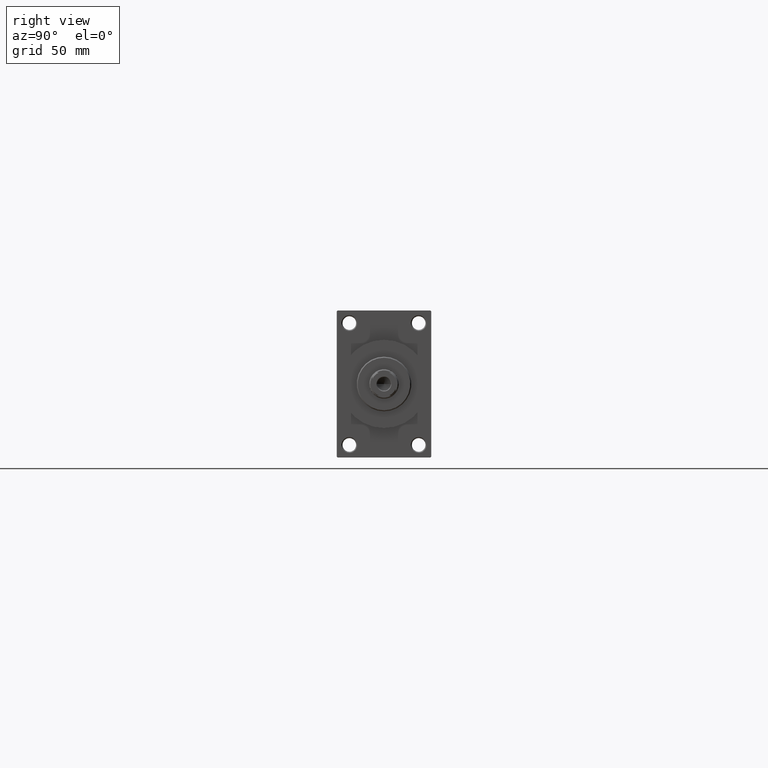
[diagram: clean part render]
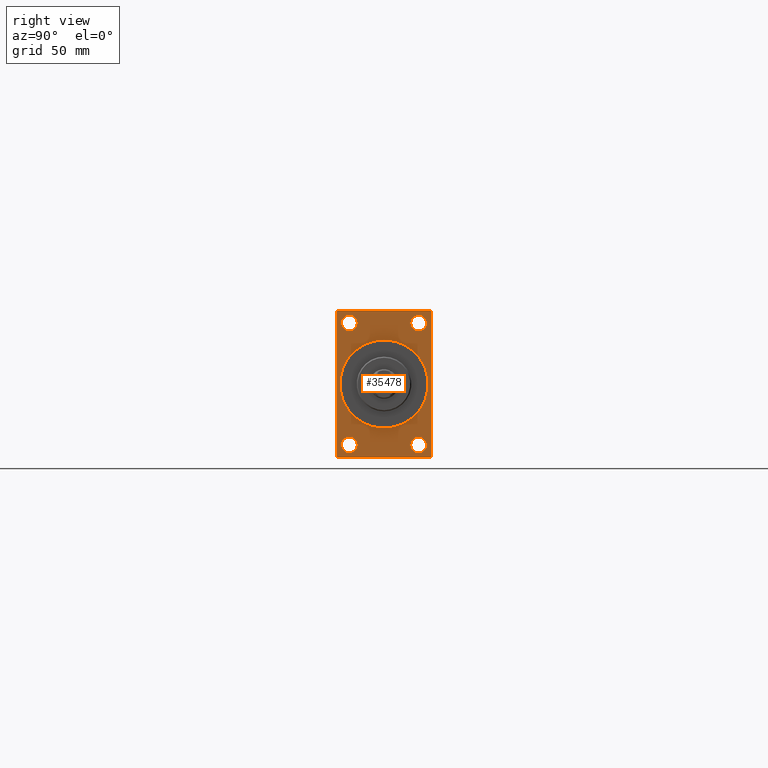
[diagram: same view with one face highlighted and labeled with its STEP entity id]
A machine part, right view. The second image highlights one B-rep face of the part: STEP entity #35478.
In plain terms, the highlighted planar face has unit normal (-1, 0, 0).
Its self-contained STEP definition (entity closure, byte-faithful):
#66 = DIRECTION ( 'NONE',  ( 1.000000000000000000, 0.000000000000000000, 0.000000000000000000 ) ) ;
#686 = CARTESIAN_POINT ( 'NONE',  ( 293.0000000000000000, 0.000000000000000000, 21.00000000000000000 ) ) ;
#981 = CIRCLE ( 'NONE', #24608, 3.750000000000055511 ) ;
#1108 = CARTESIAN_POINT ( 'NONE',  ( 293.0000000000000000, -16.50000000000000000, -28.99999999999999289 ) ) ;
#1141 = CIRCLE ( 'NONE', #36221, 3.750000000000055511 ) ;
#1433 = VECTOR ( 'NONE', #25426, 1000.000000000000000 ) ;
#1830 = ORIENTED_EDGE ( 'NONE', *, *, #3742, .T. ) ;
#2008 = ORIENTED_EDGE ( 'NONE', *, *, #37743, .T. ) ;
#2407 = DIRECTION ( 'NONE',  ( 0.000000000000000000, 0.000000000000000000, -1.000000000000000000 ) ) ;
#2640 = CARTESIAN_POINT ( 'NONE',  ( 293.0000000000000000, -22.50000000000000355, 35.00000000000000000 ) ) ;
#2726 = CIRCLE ( 'NONE', #46118, 21.00000000000000000 ) ;
#2866 = LINE ( 'NONE', #21233, #24054 ) ;
#2905 = ORIENTED_EDGE ( 'NONE', *, *, #37650, .T. ) ;
#3451 = DIRECTION ( 'NONE',  ( -1.000000000000000000, -0.000000000000000000, -0.000000000000000000 ) ) ;
#3452 = DIRECTION ( 'NONE',  ( -0.000000000000000000, 0.000000000000000000, 1.000000000000000000 ) ) ;
#3627 = ORIENTED_EDGE ( 'NONE', *, *, #22489, .T. ) ;
#3742 = EDGE_CURVE ( 'NONE', #9408, #20194, #4763, .T. ) ;
#3984 = VERTEX_POINT ( 'NONE', #26941 ) ;
#4178 = EDGE_CURVE ( 'NONE', #47054, #17003, #981, .T. ) ;
#4219 = DIRECTION ( 'NONE',  ( -0.000000000000000000, 0.7071067811865672237, 0.7071067811865279218 ) ) ;
#4633 = LINE ( 'NONE', #19193, #1433 ) ;
#4763 = CIRCLE ( 'NONE', #36759, 3.750000000000058620 ) ;
#5177 = ORIENTED_EDGE ( 'NONE', *, *, #8564, .T. ) ;
#5312 = VECTOR ( 'NONE', #27111, 1000.000000000000000 ) ;
#6052 = VERTEX_POINT ( 'NONE', #21737 ) ;
#6317 = FACE_BOUND ( 'NONE', #41993, .T. ) ;
#6919 = EDGE_CURVE ( 'NONE', #3984, #6052, #39696, .T. ) ;
#7256 = DIRECTION ( 'NONE',  ( -1.000000000000000000, 0.000000000000000000, -0.000000000000000000 ) ) ;
#7438 = CARTESIAN_POINT ( 'NONE',  ( 293.0000000000000000, 0.000000000000000000, 0.000000000000000000 ) ) ;
#7960 = EDGE_CURVE ( 'NONE', #45262, #15080, #20914, .T. ) ;
#8202 = CARTESIAN_POINT ( 'NONE',  ( 293.0000000000000000, 22.49999999999999645, 35.00000000000000000 ) ) ;
#8277 = AXIS2_PLACEMENT_3D ( 'NONE', #23929, #46295, #20102 ) ;
#8309 = VERTEX_POINT ( 'NONE', #44797 ) ;
#8481 = DIRECTION ( 'NONE',  ( 0.000000000000000000, 0.000000000000000000, 1.000000000000000000 ) ) ;
#8486 = DIRECTION ( 'NONE',  ( -1.000000000000000000, -0.000000000000000000, -0.000000000000000000 ) ) ;
#8564 = EDGE_CURVE ( 'NONE', #18296, #21203, #46799, .T. ) ;
#9381 = VERTEX_POINT ( 'NONE', #38474 ) ;
#9407 = CARTESIAN_POINT ( 'NONE',  ( 293.0000000000000000, -16.50000000000000000, -28.99999999999999289 ) ) ;
#9408 = VERTEX_POINT ( 'NONE', #24181 ) ;
#9431 = FACE_BOUND ( 'NONE', #27696, .T. ) ;
#9910 = ORIENTED_EDGE ( 'NONE', *, *, #7960, .F. ) ;
#10307 = ORIENTED_EDGE ( 'NONE', *, *, #20438, .T. ) ;
#10561 = EDGE_CURVE ( 'NONE', #15080, #45262, #2726, .T. ) ;
#10608 = DIRECTION ( 'NONE',  ( 0.000000000000000000, 0.7071067811865279218, -0.7071067811865671127 ) ) ;
#11079 = ORIENTED_EDGE ( 'NONE', *, *, #10561, .F. ) ;
#12264 = DIRECTION ( 'NONE',  ( 0.000000000000000000, -1.000000000000000000, 0.000000000000000000 ) ) ;
#13525 = EDGE_CURVE ( 'NONE', #14044, #9381, #1141, .T. ) ;
#13983 = EDGE_CURVE ( 'NONE', #45068, #45754, #2866, .T. ) ;
#14044 = VERTEX_POINT ( 'NONE', #17335 ) ;
#14191 = FACE_BOUND ( 'NONE', #40136, .T. ) ;
#14848 = CARTESIAN_POINT ( 'NONE',  ( 293.0000000000000000, 16.50000000000000000, 29.00000000000000355 ) ) ;
#15080 = VERTEX_POINT ( 'NONE', #19146 ) ;
#16323 = ORIENTED_EDGE ( 'NONE', *, *, #13525, .T. ) ;
#16615 = CIRCLE ( 'NONE', #43243, 3.750000000000055511 ) ;
#17003 = VERTEX_POINT ( 'NONE', #33863 ) ;
#17052 = EDGE_LOOP ( 'NONE', ( #16323, #10307 ) ) ;
#17066 = FACE_BOUND ( 'NONE', #17052, .T. ) ;
#17087 = EDGE_LOOP ( 'NONE', ( #9910, #11079 ) ) ;
#17335 = CARTESIAN_POINT ( 'NONE',  ( 293.0000000000000000, -16.50000000000000000, 25.24999999999995381 ) ) ;
#17418 = DIRECTION ( 'NONE',  ( -0.000000000000000000, -0.7071067811865672237, -0.7071067811865279218 ) ) ;
#17665 = DIRECTION ( 'NONE',  ( 0.000000000000000000, 0.000000000000000000, -1.000000000000000000 ) ) ;
#18000 = DIRECTION ( 'NONE',  ( 0.000000000000000000, 0.000000000000000000, 1.000000000000000000 ) ) ;
#18003 = CARTESIAN_POINT ( 'NONE',  ( 293.0000000000000000, 22.49999999999999645, 35.00000000000000000 ) ) ;
#18296 = VERTEX_POINT ( 'NONE', #35927 ) ;
#18417 = AXIS2_PLACEMENT_3D ( 'NONE', #9407, #34450, #31348 ) ;
#18781 = DIRECTION ( 'NONE',  ( 0.000000000000000000, 0.000000000000000000, 1.000000000000000000 ) ) ;
#19146 = CARTESIAN_POINT ( 'NONE',  ( 293.0000000000000000, 2.571758278209441661E-15, -21.00000000000000000 ) ) ;
#19193 = CARTESIAN_POINT ( 'NONE',  ( 293.0000000000000000, 22.49999999999999645, -35.00000000000000000 ) ) ;
#19877 = EDGE_CURVE ( 'NONE', #45754, #8309, #32211, .T. ) ;
#20102 = DIRECTION ( 'NONE',  ( 0.000000000000000000, 0.000000000000000000, 1.000000000000000000 ) ) ;
#20194 = VERTEX_POINT ( 'NONE', #26685 ) ;
#20294 = CARTESIAN_POINT ( 'NONE',  ( 293.0000000000000000, -21.99999999999996092, 35.00000000000000000 ) ) ;
#20438 = EDGE_CURVE ( 'NONE', #9381, #14044, #16615, .T. ) ;
#20882 = FACE_BOUND ( 'NONE', #17087, .T. ) ;
#20914 = CIRCLE ( 'NONE', #42248, 21.00000000000000000 ) ;
#21203 = VERTEX_POINT ( 'NONE', #25474 ) ;
#21233 = CARTESIAN_POINT ( 'NONE',  ( 293.0000000000000000, -22.50000000000000355, 34.50000000000000000 ) ) ;
#21591 = DIRECTION ( 'NONE',  ( 0.000000000000000000, 0.000000000000000000, -1.000000000000000000 ) ) ;
#21737 = CARTESIAN_POINT ( 'NONE',  ( 293.0000000000000000, 22.49999999999999645, -34.50000000000000000 ) ) ;
#22119 = DIRECTION ( 'NONE',  ( -1.000000000000000000, -0.000000000000000000, -0.000000000000000000 ) ) ;
#22489 = EDGE_CURVE ( 'NONE', #17003, #47054, #25832, .T. ) ;
#22880 = ORIENTED_EDGE ( 'NONE', *, *, #46609, .T. ) ;
#22888 = AXIS2_PLACEMENT_3D ( 'NONE', #43798, #22119, #28802 ) ;
#23066 = DIRECTION ( 'NONE',  ( 0.000000000000000000, 0.000000000000000000, 1.000000000000000000 ) ) ;
#23071 = CARTESIAN_POINT ( 'NONE',  ( 293.0000000000000000, 22.00000000000002132, 35.00000000000000000 ) ) ;
#23409 = ORIENTED_EDGE ( 'NONE', *, *, #28693, .T. ) ;
#23929 = CARTESIAN_POINT ( 'NONE',  ( 293.0000000000000000, 16.50000000000000000, -28.99999999999999289 ) ) ;
#24054 = VECTOR ( 'NONE', #17418, 1000.000000000000000 ) ;
#24074 = CARTESIAN_POINT ( 'NONE',  ( 293.0000000000000000, 16.50000000000000000, -25.24999999999993605 ) ) ;
#24181 = CARTESIAN_POINT ( 'NONE',  ( 293.0000000000000000, 16.50000000000000000, 25.24999999999994671 ) ) ;
#24372 = DIRECTION ( 'NONE',  ( 1.000000000000000000, 0.000000000000000000, 0.000000000000000000 ) ) ;
#24375 = AXIS2_PLACEMENT_3D ( 'NONE', #29659, #7256, #3452 ) ;
#24608 = AXIS2_PLACEMENT_3D ( 'NONE', #29282, #43810, #18781 ) ;
#24783 = ORIENTED_EDGE ( 'NONE', *, *, #19877, .T. ) ;
#25144 = CARTESIAN_POINT ( 'NONE',  ( 293.0000000000000000, 21.99999999999996803, -35.00000000000000000 ) ) ;
#25180 = CIRCLE ( 'NONE', #22888, 3.750000000000058620 ) ;
#25426 = DIRECTION ( 'NONE',  ( 0.000000000000000000, -1.000000000000000000, 0.000000000000000000 ) ) ;
#25474 = CARTESIAN_POINT ( 'NONE',  ( 293.0000000000000000, -16.50000000000000000, -32.75000000000005684 ) ) ;
#25821 = DIRECTION ( 'NONE',  ( 0.000000000000000000, 0.000000000000000000, 1.000000000000000000 ) ) ;
#25832 = CIRCLE ( 'NONE', #8277, 3.750000000000055511 ) ;
#26628 = CARTESIAN_POINT ( 'NONE',  ( 293.0000000000000000, 22.49999999999999645, -34.50000000000000000 ) ) ;
#26685 = CARTESIAN_POINT ( 'NONE',  ( 293.0000000000000000, 16.50000000000000000, 32.75000000000006395 ) ) ;
#26784 = CIRCLE ( 'NONE', #18417, 3.750000000000055511 ) ;
#26941 = CARTESIAN_POINT ( 'NONE',  ( 293.0000000000000000, 22.49999999999999645, 34.50000000000000000 ) ) ;
#27111 = DIRECTION ( 'NONE',  ( 0.000000000000000000, -0.7071067811865279218, 0.7071067811865671127 ) ) ;
#27281 = ORIENTED_EDGE ( 'NONE', *, *, #4178, .T. ) ;
#27393 = CARTESIAN_POINT ( 'NONE',  ( 293.0000000000000000, -22.00000000000001776, -35.00000000000000000 ) ) ;
#27454 = VECTOR ( 'NONE', #4219, 1000.000000000000000 ) ;
#27696 = EDGE_LOOP ( 'NONE', ( #42610, #5177 ) ) ;
#28492 = VECTOR ( 'NONE', #21591, 1000.000000000000000 ) ;
#28693 = EDGE_CURVE ( 'NONE', #3984, #33270, #31162, .T. ) ;
#28802 = DIRECTION ( 'NONE',  ( 0.000000000000000000, 0.000000000000000000, 1.000000000000000000 ) ) ;
#29002 = VECTOR ( 'NONE', #12264, 1000.000000000000000 ) ;
#29282 = CARTESIAN_POINT ( 'NONE',  ( 293.0000000000000000, 16.50000000000000000, -28.99999999999999289 ) ) ;
#29390 = DIRECTION ( 'NONE',  ( -1.000000000000000000, -0.000000000000000000, -0.000000000000000000 ) ) ;
#29479 = EDGE_CURVE ( 'NONE', #39008, #44728, #4633, .T. ) ;
#29499 = VECTOR ( 'NONE', #2407, 1000.000000000000000 ) ;
#29659 = CARTESIAN_POINT ( 'NONE',  ( 293.0000000000000000, 0.000000000000000000, 0.000000000000000000 ) ) ;
#31162 = LINE ( 'NONE', #23071, #5312 ) ;
#31348 = DIRECTION ( 'NONE',  ( 0.000000000000000000, 0.000000000000000000, 1.000000000000000000 ) ) ;
#31811 = ORIENTED_EDGE ( 'NONE', *, *, #29479, .F. ) ;
#32211 = LINE ( 'NONE', #2640, #29499 ) ;
#33270 = VERTEX_POINT ( 'NONE', #38363 ) ;
#33541 = DIRECTION ( 'NONE',  ( -1.000000000000000000, -0.000000000000000000, -0.000000000000000000 ) ) ;
#33863 = CARTESIAN_POINT ( 'NONE',  ( 293.0000000000000000, 16.50000000000000000, -32.75000000000005684 ) ) ;
#33965 = LINE ( 'NONE', #8202, #29002 ) ;
#34450 = DIRECTION ( 'NONE',  ( -1.000000000000000000, -0.000000000000000000, -0.000000000000000000 ) ) ;
#35379 = AXIS2_PLACEMENT_3D ( 'NONE', #1108, #8486, #23066 ) ;
#35478 = ADVANCED_FACE ( 'NONE', ( #17066, #9431, #14191, #6317, #20882, #38526 ), #44189, .F. ) ;
#35790 = CARTESIAN_POINT ( 'NONE',  ( 293.0000000000000000, 0.000000000000000000, 0.000000000000000000 ) ) ;
#35927 = CARTESIAN_POINT ( 'NONE',  ( 293.0000000000000000, -16.50000000000000000, -25.24999999999993605 ) ) ;
#36122 = CARTESIAN_POINT ( 'NONE',  ( 293.0000000000000000, -16.50000000000000000, 29.00000000000000711 ) ) ;
#36221 = AXIS2_PLACEMENT_3D ( 'NONE', #36122, #3451, #18000 ) ;
#36759 = AXIS2_PLACEMENT_3D ( 'NONE', #14848, #29390, #25821 ) ;
#36889 = LINE ( 'NONE', #26628, #27454 ) ;
#37494 = VECTOR ( 'NONE', #10608, 1000.000000000000000 ) ;
#37650 = EDGE_CURVE ( 'NONE', #20194, #9408, #25180, .T. ) ;
#37743 = EDGE_CURVE ( 'NONE', #39008, #6052, #36889, .T. ) ;
#37926 = ORIENTED_EDGE ( 'NONE', *, *, #38740, .T. ) ;
#38095 = ORIENTED_EDGE ( 'NONE', *, *, #13983, .T. ) ;
#38305 = CARTESIAN_POINT ( 'NONE',  ( 293.0000000000000000, -16.50000000000000000, 29.00000000000000711 ) ) ;
#38363 = CARTESIAN_POINT ( 'NONE',  ( 293.0000000000000000, 22.00000000000002132, 35.00000000000000000 ) ) ;
#38474 = CARTESIAN_POINT ( 'NONE',  ( 293.0000000000000000, -16.50000000000000000, 32.75000000000006395 ) ) ;
#38526 = FACE_OUTER_BOUND ( 'NONE', #45805, .T. ) ;
#38740 = EDGE_CURVE ( 'NONE', #33270, #45068, #33965, .T. ) ;
#39008 = VERTEX_POINT ( 'NONE', #25144 ) ;
#39468 = LINE ( 'NONE', #40391, #37494 ) ;
#39696 = LINE ( 'NONE', #18003, #28492 ) ;
#40136 = EDGE_LOOP ( 'NONE', ( #3627, #27281 ) ) ;
#40391 = CARTESIAN_POINT ( 'NONE',  ( 293.0000000000000000, -22.00000000000002842, -35.00000000000000000 ) ) ;
#40746 = ORIENTED_EDGE ( 'NONE', *, *, #6919, .F. ) ;
#40970 = EDGE_CURVE ( 'NONE', #21203, #18296, #26784, .T. ) ;
#41993 = EDGE_LOOP ( 'NONE', ( #1830, #2905 ) ) ;
#42248 = AXIS2_PLACEMENT_3D ( 'NONE', #7438, #66, #43682 ) ;
#42610 = ORIENTED_EDGE ( 'NONE', *, *, #40970, .T. ) ;
#43243 = AXIS2_PLACEMENT_3D ( 'NONE', #38305, #33541, #8481 ) ;
#43682 = DIRECTION ( 'NONE',  ( 0.000000000000000000, 0.000000000000000000, -1.000000000000000000 ) ) ;
#43798 = CARTESIAN_POINT ( 'NONE',  ( 293.0000000000000000, 16.50000000000000000, 29.00000000000000355 ) ) ;
#43810 = DIRECTION ( 'NONE',  ( -1.000000000000000000, -0.000000000000000000, -0.000000000000000000 ) ) ;
#44189 = PLANE ( 'NONE',  #24375 ) ;
#44728 = VERTEX_POINT ( 'NONE', #27393 ) ;
#44797 = CARTESIAN_POINT ( 'NONE',  ( 293.0000000000000000, -22.50000000000000355, -34.50000000000000000 ) ) ;
#45068 = VERTEX_POINT ( 'NONE', #20294 ) ;
#45262 = VERTEX_POINT ( 'NONE', #686 ) ;
#45315 = CARTESIAN_POINT ( 'NONE',  ( 293.0000000000000000, -22.50000000000000355, 34.50000000000000000 ) ) ;
#45754 = VERTEX_POINT ( 'NONE', #45315 ) ;
#45805 = EDGE_LOOP ( 'NONE', ( #24783, #22880, #31811, #2008, #40746, #23409, #37926, #38095 ) ) ;
#46118 = AXIS2_PLACEMENT_3D ( 'NONE', #35790, #24372, #17665 ) ;
#46295 = DIRECTION ( 'NONE',  ( -1.000000000000000000, -0.000000000000000000, -0.000000000000000000 ) ) ;
#46609 = EDGE_CURVE ( 'NONE', #8309, #44728, #39468, .T. ) ;
#46799 = CIRCLE ( 'NONE', #35379, 3.750000000000055511 ) ;
#47054 = VERTEX_POINT ( 'NONE', #24074 ) ;